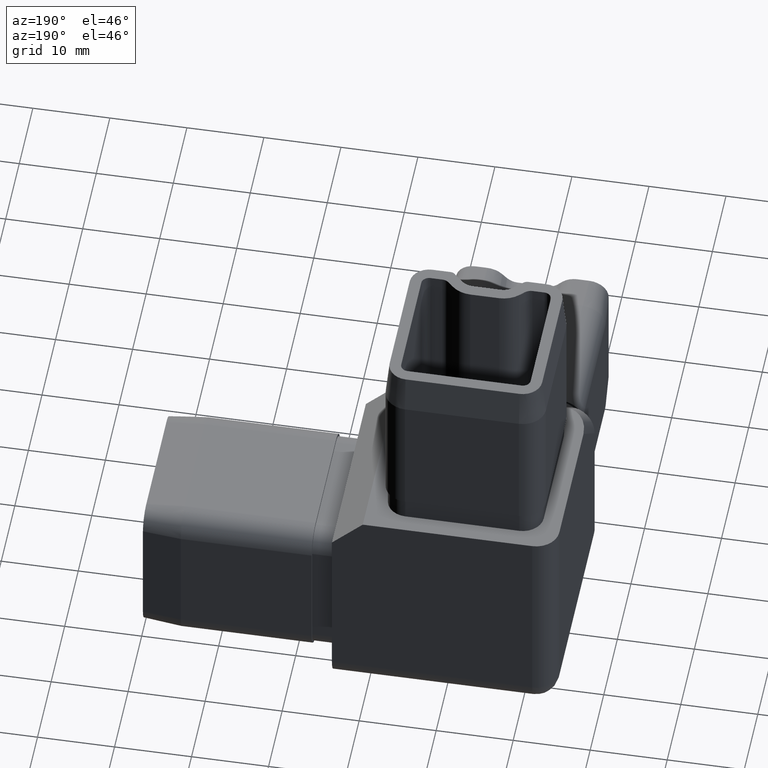
[diagram: clean part render]
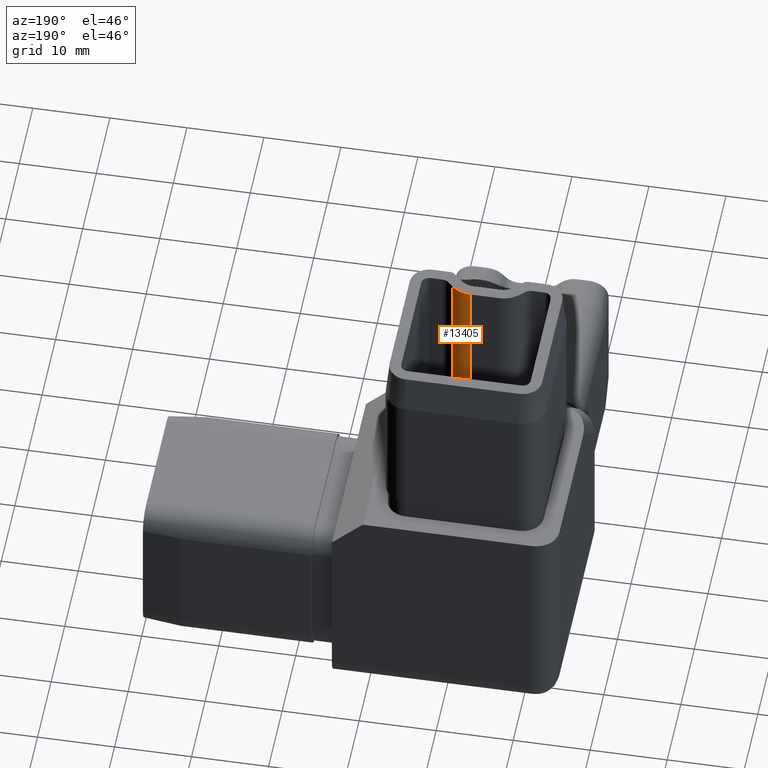
[diagram: same view with one face highlighted and labeled with its STEP entity id]
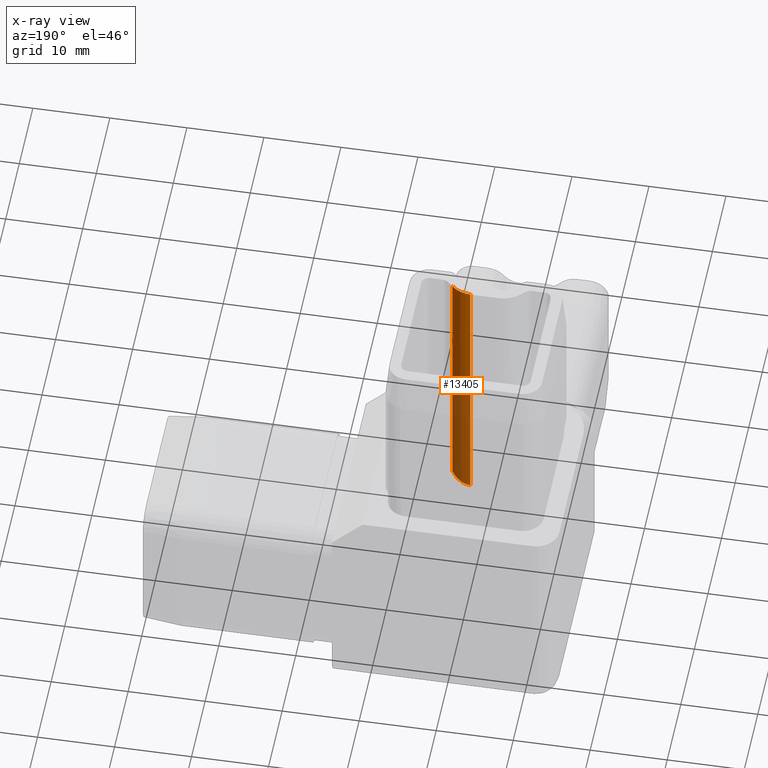
[diagram: x-ray of the same camera — body ghosted, the highlighted face saturated]
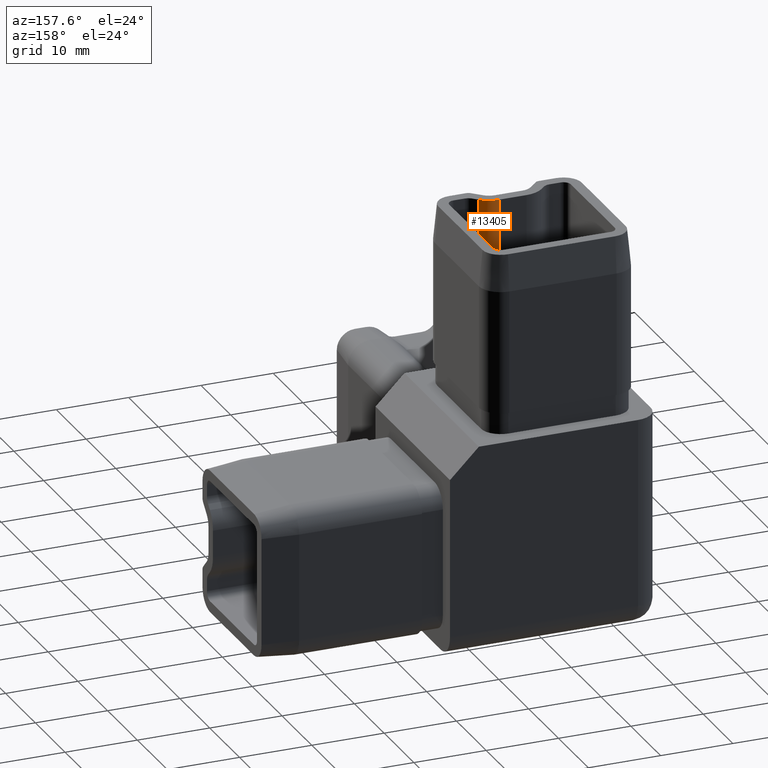
[diagram: same view with one face highlighted and labeled with its STEP entity id]
A machine part, auxiliary view. The second image highlights one B-rep face of the part: STEP entity #13405.
The next image is the same camera in x-ray: the body ghosted, the highlighted face saturated — about 54% of this face is hidden behind the body in this view.
A second angle (auxiliary view) of the same face is appended — the face is thin or edge-on in the first view.
In plain terms, the highlighted cylindrical surface (edge-blend (fillet) strip) has radius 3.5 mm, axis along (-0, -0, -1).
Its self-contained STEP definition (entity closure, byte-faithful):
#943 = CARTESIAN_POINT ( 'NONE',  ( -0.1213203435596459900, -4.399999999999995900, 39.50000000000000000 ) ) ;
#1074 = CARTESIAN_POINT ( 'NONE',  ( 2.353553390593271300, -5.425126265847080900, 39.50000000000000000 ) ) ;
#1164 = CARTESIAN_POINT ( 'NONE',  ( 2.353553390593273100, -5.425126265847080900, 5.425126265847086200 ) ) ;
#1165 = VERTEX_POINT ( 'NONE', #1164 ) ;
#1434 = AXIS2_PLACEMENT_3D ( 'NONE', #16944, #11675, #10174 ) ;
#1489 = CIRCLE ( 'NONE', #9481, 3.500000000000001300 ) ;
#2225 = CARTESIAN_POINT ( 'NONE',  ( -0.1213203435596459900, -4.399999999999995900, 39.50000000000000000 ) ) ;
#2257 = LINE ( 'NONE', #2963, #4822 ) ;
#2869 =( BOUNDED_CURVE ( )  B_SPLINE_CURVE ( 3, ( #7593, #10387, #8787, #7481 ),
 .UNSPECIFIED., .F., .F. ) 
 B_SPLINE_CURVE_WITH_KNOTS ( ( 4, 4 ),
 ( 3.141592653589793100, 3.926990816987242300 ),
 .UNSPECIFIED. ) 
 CURVE ( )  GEOMETRIC_REPRESENTATION_ITEM ( )  RATIONAL_B_SPLINE_CURVE ( ( 1.000000000000000000, 0.9492530216741910100, 0.9492530216741910100, 1.000000000000000000 ) ) 
 REPRESENTATION_ITEM ( '' )  );
#2963 = CARTESIAN_POINT ( 'NONE',  ( 2.353553390593271300, -5.425126265847080900, 39.50000000000000000 ) ) ;
#3204 = ORIENTED_EDGE ( 'NONE', *, *, #15287, .F. ) ;
#3388 = VERTEX_POINT ( 'NONE', #1074 ) ;
#4267 = VERTEX_POINT ( 'NONE', #943 ) ;
#4628 = FACE_OUTER_BOUND ( 'NONE', #4998, .T. ) ;
#4822 = VECTOR ( 'NONE', #5523, 1000.000000000000000 ) ;
#4998 = EDGE_LOOP ( 'NONE', ( #7359, #3204, #6623, #7337 ) ) ;
#5523 = DIRECTION ( 'NONE',  ( -0.0000000000000000000, -0.0000000000000000000, -1.000000000000000000 ) ) ;
#5554 = EDGE_CURVE ( 'NONE', #3388, #1165, #2257, .T. ) ;
#5740 = CARTESIAN_POINT ( 'NONE',  ( -0.1213203435596454200, -7.899999999999997700, 39.50000000000000000 ) ) ;
#6623 = ORIENTED_EDGE ( 'NONE', *, *, #11107, .F. ) ;
#7337 = ORIENTED_EDGE ( 'NONE', *, *, #8800, .T. ) ;
#7359 = ORIENTED_EDGE ( 'NONE', *, *, #5554, .T. ) ;
#7481 = CARTESIAN_POINT ( 'NONE',  ( 2.353553390593273100, -5.425126265847080900, 5.425126265847086200 ) ) ;
#7593 = CARTESIAN_POINT ( 'NONE',  ( -0.1213203435596463000, -4.399999999999995900, 4.399999999999995900 ) ) ;
#7810 = LINE ( 'NONE', #2225, #13148 ) ;
#8508 = DIRECTION ( 'NONE',  ( -0.0000000000000000000, -0.0000000000000000000, -1.000000000000000000 ) ) ;
#8787 = CARTESIAN_POINT ( 'NONE',  ( 1.688403598331379200, -4.759976473585186200, 4.759976473585187100 ) ) ;
#8800 = EDGE_CURVE ( 'NONE', #4267, #3388, #1489, .T. ) ;
#9481 = AXIS2_PLACEMENT_3D ( 'NONE', #5740, #8508, #11264 ) ;
#10174 = DIRECTION ( 'NONE',  ( -1.000000000000000000, 0.0000000000000000000, 0.0000000000000000000 ) ) ;
#10387 = CARTESIAN_POINT ( 'NONE',  ( 0.8193435136667724900, -4.399999999999995900, 4.399999999999995900 ) ) ;
#11107 = EDGE_CURVE ( 'NONE', #4267, #15644, #7810, .T. ) ;
#11264 = DIRECTION ( 'NONE',  ( 1.000000000000000000, 0.0000000000000000000, 0.0000000000000000000 ) ) ;
#11675 = DIRECTION ( 'NONE',  ( -0.0000000000000000000, -0.0000000000000000000, -1.000000000000000000 ) ) ;
#11920 = DIRECTION ( 'NONE',  ( -0.0000000000000000000, -0.0000000000000000000, -1.000000000000000000 ) ) ;
#13148 = VECTOR ( 'NONE', #11920, 1000.000000000000000 ) ;
#13405 = ADVANCED_FACE ( 'NONE', ( #4628 ), #14909, .T. ) ;
#14909 = CYLINDRICAL_SURFACE ( 'NONE', #1434, 3.500000000000001300 ) ;
#15287 = EDGE_CURVE ( 'NONE', #15644, #1165, #2869, .T. ) ;
#15644 = VERTEX_POINT ( 'NONE', #15708 ) ;
#15708 = CARTESIAN_POINT ( 'NONE',  ( -0.1213203435596463000, -4.399999999999995900, 4.399999999999995900 ) ) ;
#16944 = CARTESIAN_POINT ( 'NONE',  ( -0.1213203435596454200, -7.899999999999997700, 39.50000000000000000 ) ) ;